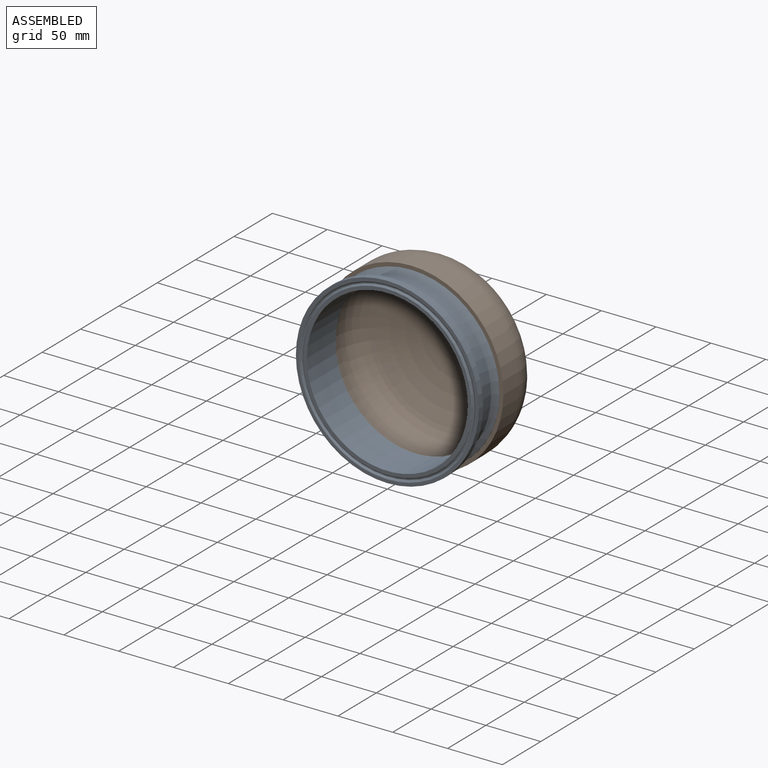
[diagram: assembled view]
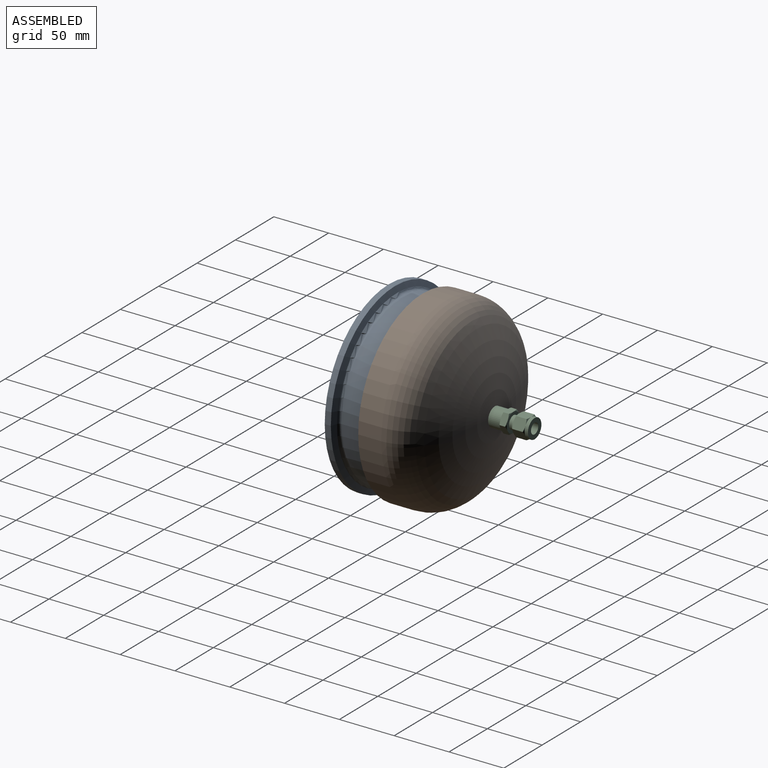
[diagram: assembled view, second angle]
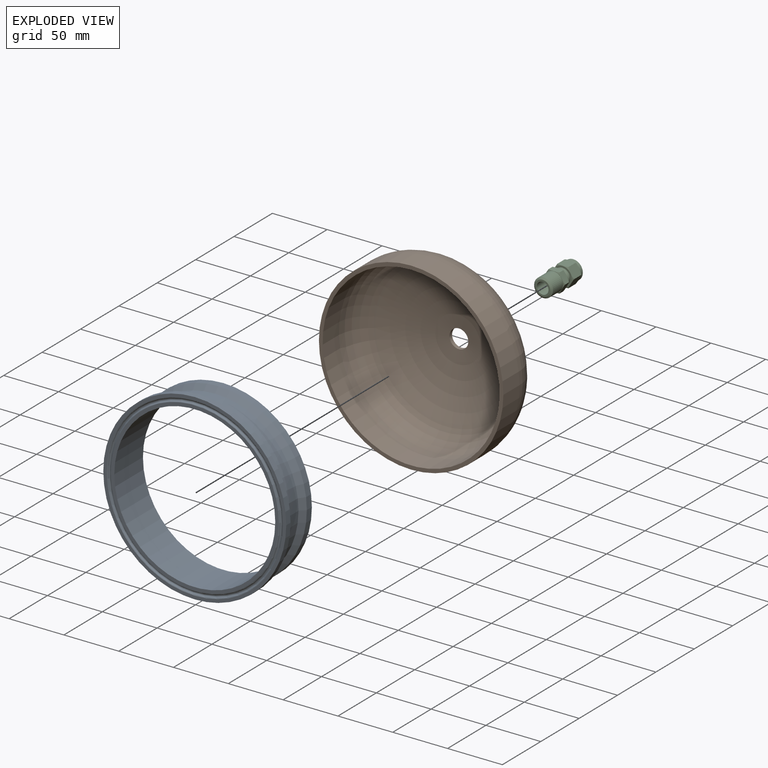
[diagram: exploded view]
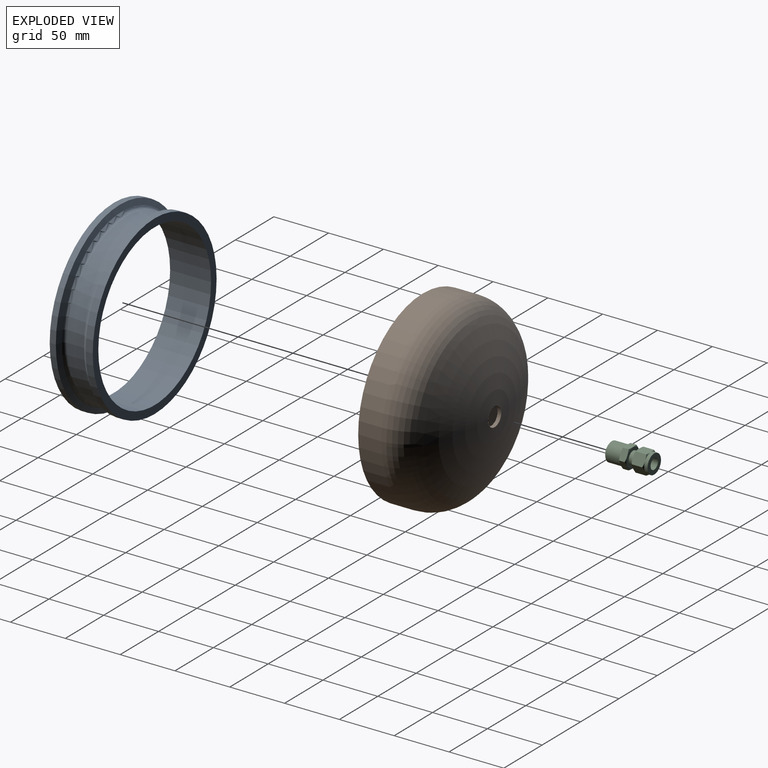
[diagram: exploded view, second angle]
ASSEMBLY  parts=3 mates=2
PART A: 15 faces, bbox 174.1x37.3x174.1 mm
  f0: cylinder r=83.44mm len=166.88mm, axis (0,-1,0), area 2929.6mm2, adj f1,f10
  f1: cone r=78.29mm half-angle=70deg, axis (0,-1,0), area 2784.5mm2, adj f0,f2
  f2: torus R=79.38mm, axis (0,-1,0), area 1875mm2, adj f1,f3
  f3: cylinder r=76.2mm len=152.4mm, axis (0,-1,0), area 7597.5mm2, adj f2,f14
  f4: cylinder r=73.43mm len=146.86mm, axis (0,-1,0), area 17227.1mm2, adj f11,f13
  f5: torus R=76.44mm, axis (0,-1,0), area 444.6mm2, adj f6,f11
  f6: cone r=77.34mm half-angle=23deg, axis (0,1,0), area 207.3mm2, adj f5,f7
  f7: torus R=78.44mm, axis (0,-1,0), area 1376mm2, adj f6,f8
  f8: cone r=79.7mm half-angle=23deg, axis (0,-1,0), area 213.6mm2, adj f7,f9
  f9: torus R=80.43mm, axis (0,-1,0), area 462.9mm2, adj f8,f10
  f10: plane 166.88x166.88mm, normal (0,-1,0), area 1551.2mm2, adj f0,f9
  f11: plane 152.89x152.89mm, normal (0,-1,0), area 1418.8mm2, adj f4,f5
  f12: cylinder r=80.67mm len=161.34mm, axis (0,-1,0), area 3321.6mm2, adj f13,f14
  f13: plane 161.34x161.34mm, normal (0,1,0), area 3504.6mm2, adj f4,f12
  f14: cone r=80.67mm half-angle=45deg, axis (0,1,0), area 3115.7mm2, adj f3,f12
PART B: 8 faces, bbox 182.1x65.6x182.1 mm
  f0: sphere r=142.06mm, area 15096.4mm2, adj f3,f7
  f1: sphere r=138.66mm, area 14370.7mm2, adj f5,f7
  f2: plane 168.28x168.28mm, normal (0,1,0), area 1762.9mm2, adj f4,f6
  f3: torus R=52.74mm, axis (0,-1,0), area 16618.3mm2, adj f0,f4
  f4: cylinder r=84.14mm len=168.28mm, axis (0,-1,0), area 11158.5mm2, adj f2,f3
  f5: torus R=52.74mm, axis (0,-1,0), area 14290.4mm2, adj f1,f6
  f6: cylinder r=80.73mm len=161.47mm, axis (0,-1,0), area 10707.1mm2, adj f2,f5
  f7: cylinder r=8.57mm len=17.15mm, axis (0,1,0), area 183.7mm2, adj f0,f1
PART C: 52 faces, bbox 39.9x20.2x20.2 mm
  f0: plane 11.18x8.76mm, normal (0,0.87,0.5), area 107.7mm2, adj f1,f5,f7,f8,f12,f13
  f1: plane 11.18x10.12mm, normal (0,0,1), area 107.7mm2, adj f0,f2,f6,f7,f13,f14
  f2: plane 11.18x8.76mm, normal (0,-0.87,0.5), area 107.7mm2, adj f1,f3,f6,f11,f14,f15
  f3: plane 11.18x8.76mm, normal (0,-0.87,-0.5), area 107.7mm2, adj f2,f4,f10,f11,f15,f16
  f4: plane 11.18x10.12mm, normal (0,0,-1), area 107.7mm2, adj f3,f5,f9,f10,f16,f17
  f5: plane 11.18x8.76mm, normal (0,0.87,-0.5), area 107.7mm2, adj f0,f4,f8,f9,f12,f17
  f6: cone r=9.44mm half-angle=60deg, axis (-1,0,0), area 4.8mm2, adj f1,f2,f18
  f7: cone r=9.44mm half-angle=60deg, axis (-1,0,0), area 4.8mm2, adj f0,f1,f18
  f8: cone r=9.44mm half-angle=60deg, axis (-1,0,0), area 4.8mm2, adj f0,f5,f18
  f9: cone r=9.44mm half-angle=60deg, axis (-1,0,0), area 4.8mm2, adj f4,f5,f18
  f10: cone r=9.44mm half-angle=60deg, axis (-1,0,0), area 4.8mm2, adj f3,f4,f18
  f11: cone r=9.44mm half-angle=60deg, axis (-1,0,0), area 4.8mm2, adj f2,f3,f18
  f12: cone r=9.44mm half-angle=60deg, axis (1,0,0), area 4.8mm2, adj f0,f5,f19
  f13: cone r=9.44mm half-angle=60deg, axis (1,0,0), area 4.8mm2, adj f0,f1,f19
  f14: cone r=9.44mm half-angle=60deg, axis (1,0,0), area 4.8mm2, adj f1,f2,f19
  f15: cone r=9.44mm half-angle=60deg, axis (1,0,0), area 4.8mm2, adj f2,f3,f19
  f16: cone r=9.44mm half-angle=60deg, axis (1,0,0), area 4.8mm2, adj f3,f4,f19
  f17: cone r=9.44mm half-angle=60deg, axis (1,0,0), area 4.8mm2, adj f4,f5,f19
  f18: plane 17.53x17.53mm, normal (1,0,0), area 80.9mm2, adj f6,f7,f8,f9,f10,f11,f20
  f19: cylinder r=8.76mm len=17.53mm, axis (1,0,0), area 167.8mm2, adj f12,f13,f14,f15,f16,f17,f21
  f20: cylinder r=7.14mm len=14.29mm, axis (1,0,0), area 57.5mm2, adj f18,f22
  f21: plane 17.53x17.53mm, normal (-1,0,0), area 170mm2, adj f19,f23
  f22: cone r=6.51mm half-angle=45deg, axis (-1,0,0), area 72.9mm2, adj f20,f24
  f23: cylinder r=4.76mm len=16.76mm, axis (1,0,0), area 501.6mm2, adj f21,f25
  f24: cylinder r=5.88mm len=11.77mm, axis (1,0,0), area 93.9mm2, adj f22,f26
  f25: plane 9.53x9.53mm, normal (-1,0,0), area 31.5mm2, adj f23,f27
  f26: plane 17.46x17.46mm, normal (-1,0,0), area 130.7mm2, adj f24,f28,f29,f30,f31,f32,f33
  f27: cylinder r=3.56mm len=9.65mm, axis (-1,0,0), area 215.7mm2, adj f25,f34
  f28: cone r=9.41mm half-angle=65deg, axis (1,0,0), area 4.5mm2, adj f26,f35,f36
  f29: cone r=9.41mm half-angle=65deg, axis (1,0,0), area 4.5mm2, adj f26,f36,f37
  f30: cone r=9.41mm half-angle=65deg, axis (1,0,0), area 4.5mm2, adj f26,f37,f38
  f31: cone r=9.41mm half-angle=65deg, axis (1,0,0), area 4.5mm2, adj f26,f38,f40
  f32: cone r=9.41mm half-angle=65deg, axis (1,0,0), area 4.5mm2, adj f26,f35,f39
  f33: cone r=9.41mm half-angle=65deg, axis (1,0,0), area 4.5mm2, adj f26,f39,f40
  f34: plane 10.67x10.67mm, normal (1,0,0), area 49.7mm2, adj f27,f41
  f35: plane 8.73x6.35mm, normal (0,-0.87,-0.5), area 59.7mm2, adj f28,f32,f36,f39,f42,f43
  f36: plane 8.73x6.35mm, normal (0,-0.87,0.5), area 59.7mm2, adj f28,f29,f35,f37,f43,f44
  f37: plane 10.08x6.35mm, normal (0,0,1), area 59.7mm2, adj f29,f30,f36,f38,f44,f45
  f38: plane 8.73x6.35mm, normal (0,0.87,0.5), area 59.7mm2, adj f30,f31,f37,f40,f45,f46
  f39: plane 10.08x6.35mm, normal (0,0,-1), area 59.7mm2, adj f32,f33,f35,f40,f42,f47
  f40: plane 8.73x6.35mm, normal (0,0.87,-0.5), area 59.7mm2, adj f31,f33,f38,f39,f46,f47
  f41: cylinder r=5.33mm len=13.46mm, axis (-1,0,0), area 451.2mm2, adj f34,f48
  f42: cone r=9.41mm half-angle=65deg, axis (-1,0,0), area 4.5mm2, adj f35,f39,f50
  f43: cone r=9.41mm half-angle=65deg, axis (-1,0,0), area 4.5mm2, adj f35,f36,f50
  f44: cone r=9.41mm half-angle=65deg, axis (-1,0,0), area 4.5mm2, adj f36,f37,f50
  f45: cone r=9.41mm half-angle=65deg, axis (-1,0,0), area 4.5mm2, adj f37,f38,f50
  f46: cone r=9.41mm half-angle=65deg, axis (-1,0,0), area 4.5mm2, adj f38,f40,f50
  f47: cone r=9.41mm half-angle=65deg, axis (-1,0,0), area 4.5mm2, adj f39,f40,f50
  f48: plane 13.97x13.97mm, normal (1,0,0), area 63.9mm2, adj f41,f49
  f49: cone r=7.78mm half-angle=52.5deg, axis (-1,0,0), area 97.8mm2, adj f48,f51
  f50: plane 17.46x17.46mm, normal (1,0,0), area 8.6mm2, adj f42,f43,f44,f45,f46,f47,f51
  f51: cylinder r=8.57mm len=17.15mm, axis (-1,0,0), area 700.5mm2, adj f49,f50
PLACE A at identity
PLACE B rot(axis=(1,0,0),180deg) t=(0,31,0)mm
PLACE C rot(axis=(0.71,-0.71,0),180deg) t=(0,133.09,0)mm
MATE fastened A.f0 <-> B.f3  axis (0,1,0) through (0,37.34,0)mm
MATE fastened B.f7 <-> C.f49  axis (0,-1,0) through (0,93.21,0)mm
